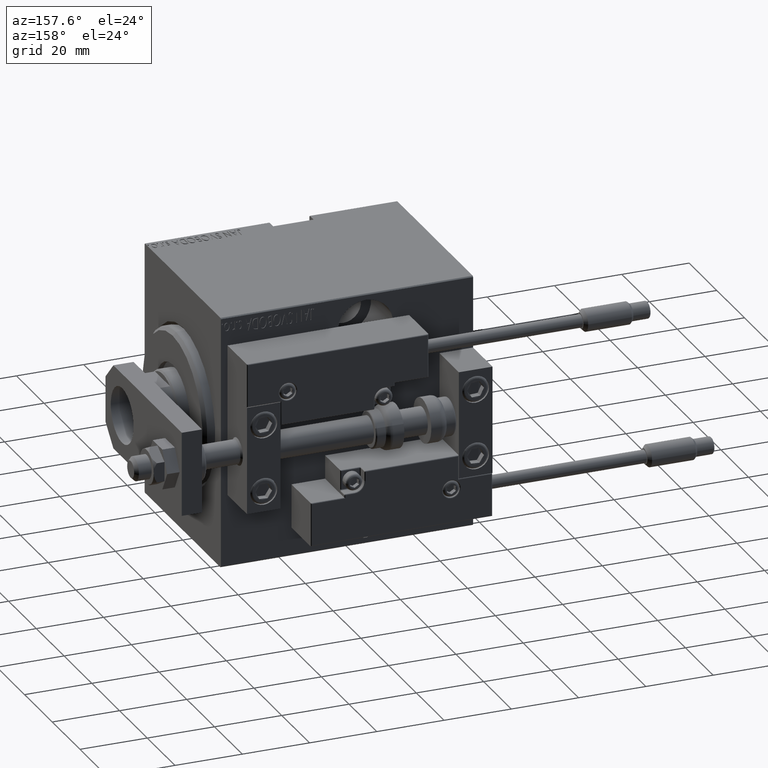
[diagram: clean part render]
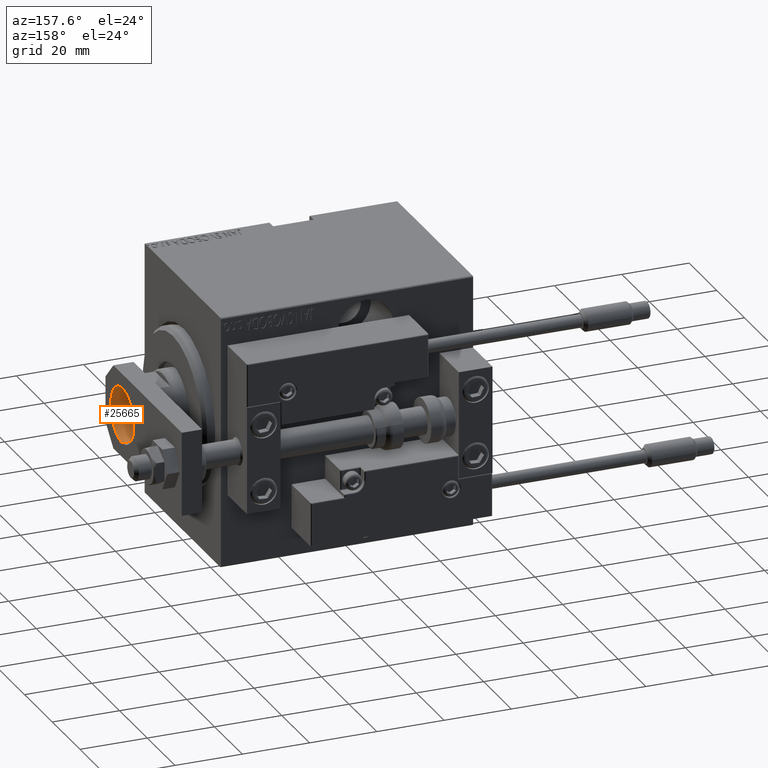
[diagram: same view with one face highlighted and labeled with its STEP entity id]
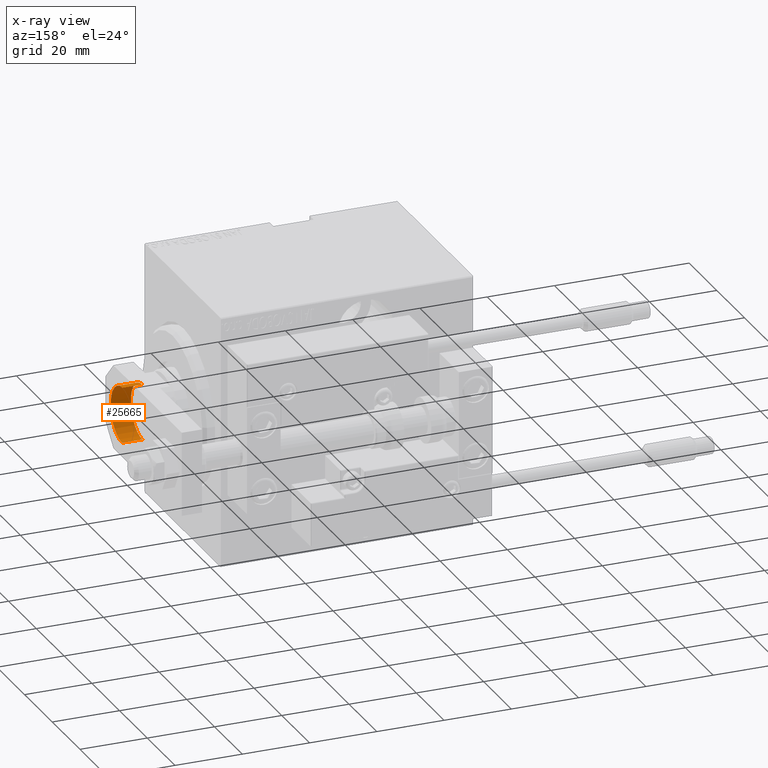
[diagram: x-ray of the same camera — body ghosted, the highlighted face saturated]
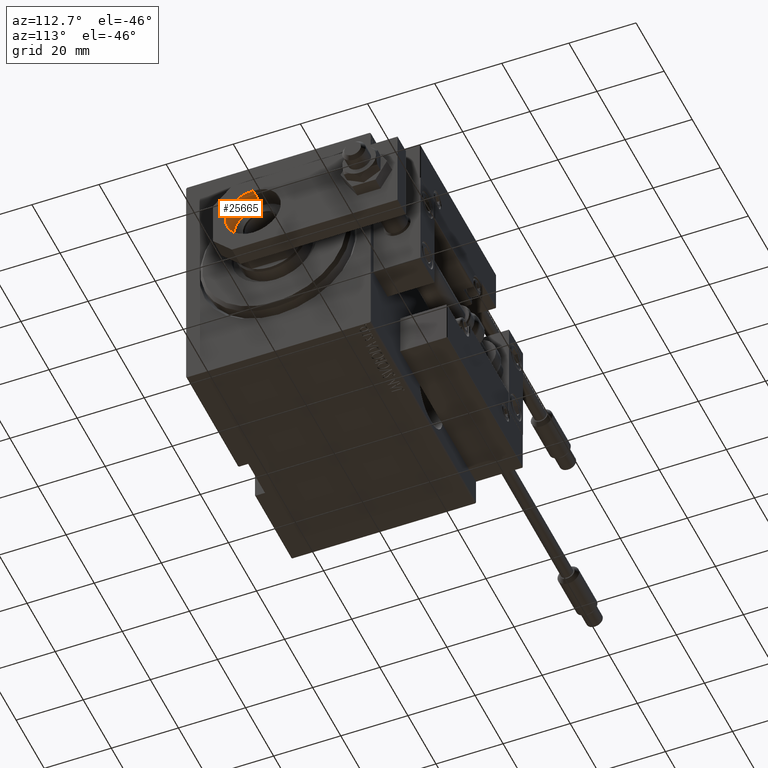
[diagram: same view with one face highlighted and labeled with its STEP entity id]
A machine part, auxiliary view. The second image highlights one B-rep face of the part: STEP entity #25665.
The next image is the same camera in x-ray: the body ghosted, the highlighted face saturated — about 0% of this face is hidden behind the body in this view.
A second angle (auxiliary view) of the same face is appended — the face is thin or edge-on in the first view.
In plain terms, the highlighted cylindrical surface (edge-blend (fillet) strip) has radius 8.25 mm, axis along (-1, -0, 0).
Its self-contained STEP definition (entity closure, byte-faithful):
#245 = VERTEX_POINT ( 'NONE', #930 ) ;
#930 = CARTESIAN_POINT ( 'NONE',  ( -8.250000000000000000, 11.99999999999999645, 0.000000000000000000 ) ) ;
#2730 = EDGE_CURVE ( 'NONE', #27560, #39245, #38992, .T. ) ;
#8649 = LINE ( 'NONE', #47139, #11135 ) ;
#9699 = LINE ( 'NONE', #10438, #46116 ) ;
#9855 = CARTESIAN_POINT ( 'NONE',  ( 8.250000000000000000, 11.99999999999999822, 6.000000000000000000 ) ) ;
#10438 = CARTESIAN_POINT ( 'NONE',  ( -8.250000000000000000, 11.99999999999999645, 6.000000000000000000 ) ) ;
#11135 = VECTOR ( 'NONE', #16923, 1000.000000000000000 ) ;
#13100 = EDGE_CURVE ( 'NONE', #39245, #44846, #8649, .T. ) ;
#14640 = DIRECTION ( 'NONE',  ( -1.000000000000000000, 0.000000000000000000, 0.000000000000000000 ) ) ;
#15866 = CARTESIAN_POINT ( 'NONE',  ( -8.250000000000000000, 11.99999999999999645, 6.000000000000000000 ) ) ;
#16786 = EDGE_CURVE ( 'NONE', #245, #44846, #20846, .T. ) ;
#16923 = DIRECTION ( 'NONE',  ( -0.000000000000000000, -0.000000000000000000, -1.000000000000000000 ) ) ;
#17661 = DIRECTION ( 'NONE',  ( 0.000000000000000000, 0.000000000000000000, 1.000000000000000000 ) ) ;
#20846 = CIRCLE ( 'NONE', #26497, 8.250000000000000000 ) ;
#25665 = ADVANCED_FACE ( 'NONE', ( #49108 ), #28989, .F. ) ;
#25768 = DIRECTION ( 'NONE',  ( -0.000000000000000000, -0.000000000000000000, -1.000000000000000000 ) ) ;
#26497 = AXIS2_PLACEMENT_3D ( 'NONE', #28176, #39268, #43039 ) ;
#27560 = VERTEX_POINT ( 'NONE', #15866 ) ;
#28176 = CARTESIAN_POINT ( 'NONE',  ( -9.629649721936179265E-32, 11.99999999999999645, 0.000000000000000000 ) ) ;
#28310 = AXIS2_PLACEMENT_3D ( 'NONE', #37778, #37532, #14640 ) ;
#28989 = CYLINDRICAL_SURFACE ( 'NONE', #28310, 8.250000000000000000 ) ;
#31798 = ORIENTED_EDGE ( 'NONE', *, *, #13100, .T. ) ;
#32538 = AXIS2_PLACEMENT_3D ( 'NONE', #40804, #17661, #36530 ) ;
#36530 = DIRECTION ( 'NONE',  ( 1.000000000000000000, 0.000000000000000000, 0.000000000000000000 ) ) ;
#37532 = DIRECTION ( 'NONE',  ( -0.000000000000000000, -0.000000000000000000, -1.000000000000000000 ) ) ;
#37778 = CARTESIAN_POINT ( 'NONE',  ( -9.629649721936179265E-32, 11.99999999999999645, 6.000000000000000000 ) ) ;
#38992 = CIRCLE ( 'NONE', #32538, 8.250000000000000000 ) ;
#39245 = VERTEX_POINT ( 'NONE', #9855 ) ;
#39268 = DIRECTION ( 'NONE',  ( 0.000000000000000000, 0.000000000000000000, 1.000000000000000000 ) ) ;
#40460 = ORIENTED_EDGE ( 'NONE', *, *, #44818, .F. ) ;
#40804 = CARTESIAN_POINT ( 'NONE',  ( -9.629649721936179265E-32, 11.99999999999999645, 6.000000000000000000 ) ) ;
#42700 = ORIENTED_EDGE ( 'NONE', *, *, #2730, .T. ) ;
#43039 = DIRECTION ( 'NONE',  ( 1.000000000000000000, 0.000000000000000000, 0.000000000000000000 ) ) ;
#44530 = EDGE_LOOP ( 'NONE', ( #42700, #31798, #46335, #40460 ) ) ;
#44818 = EDGE_CURVE ( 'NONE', #27560, #245, #9699, .T. ) ;
#44846 = VERTEX_POINT ( 'NONE', #45144 ) ;
#45144 = CARTESIAN_POINT ( 'NONE',  ( 8.250000000000000000, 11.99999999999999822, 0.000000000000000000 ) ) ;
#46116 = VECTOR ( 'NONE', #25768, 1000.000000000000000 ) ;
#46335 = ORIENTED_EDGE ( 'NONE', *, *, #16786, .F. ) ;
#47139 = CARTESIAN_POINT ( 'NONE',  ( 8.250000000000000000, 11.99999999999999822, 6.000000000000000000 ) ) ;
#49108 = FACE_OUTER_BOUND ( 'NONE', #44530, .T. ) ;